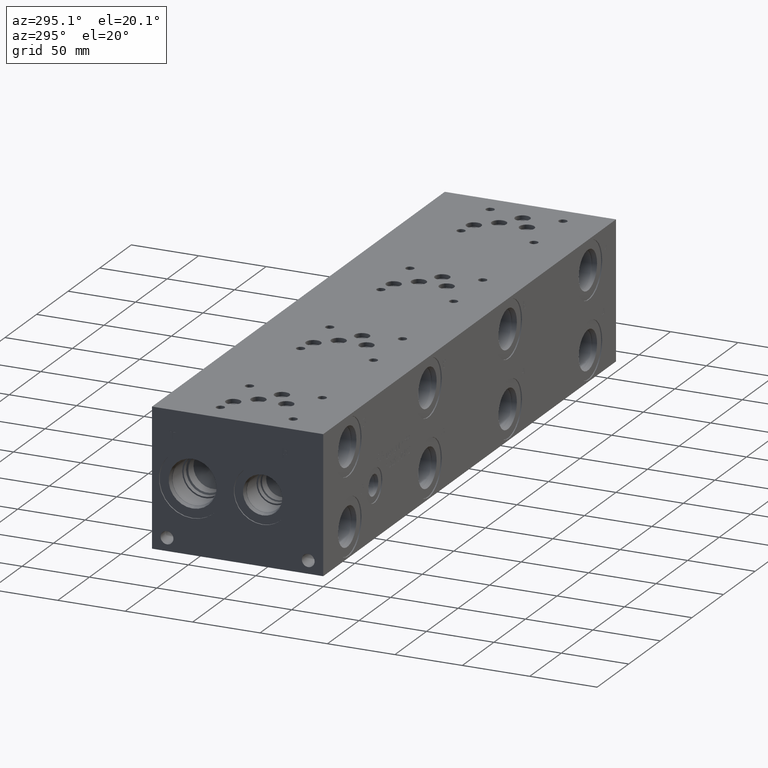
[diagram: clean part render]
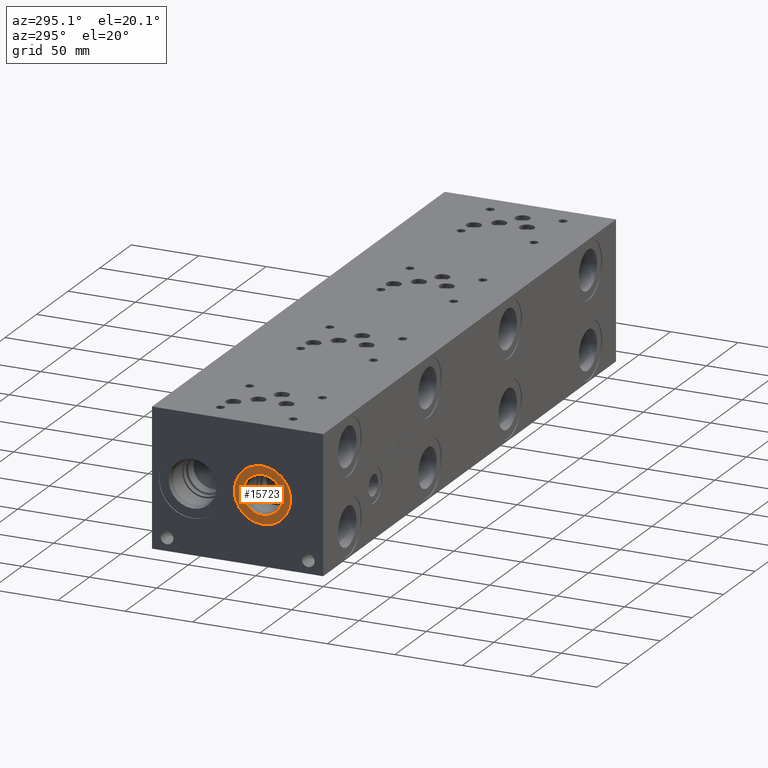
[diagram: same view with one face highlighted and labeled with its STEP entity id]
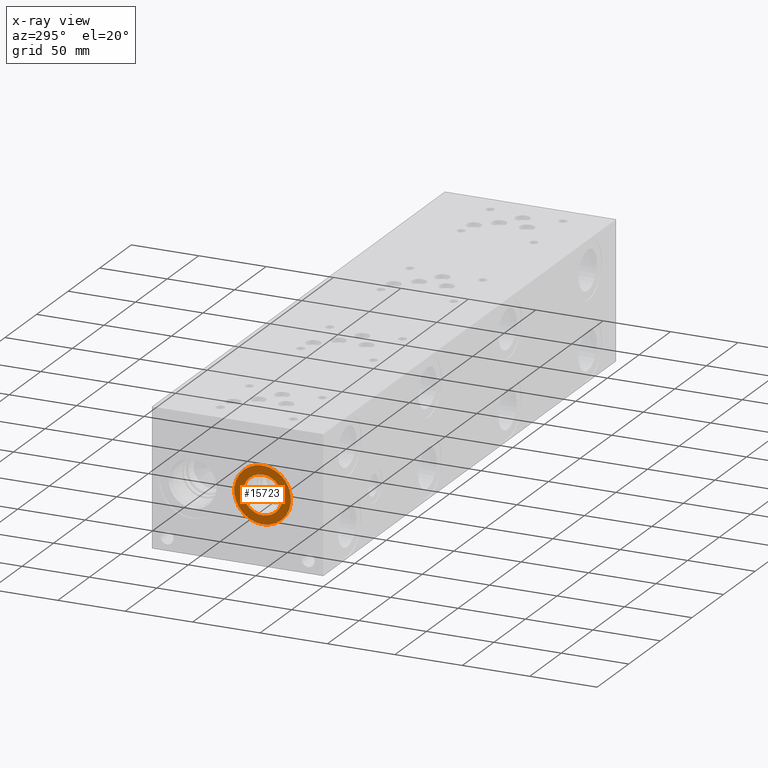
[diagram: x-ray of the same camera — body ghosted, the highlighted face saturated]
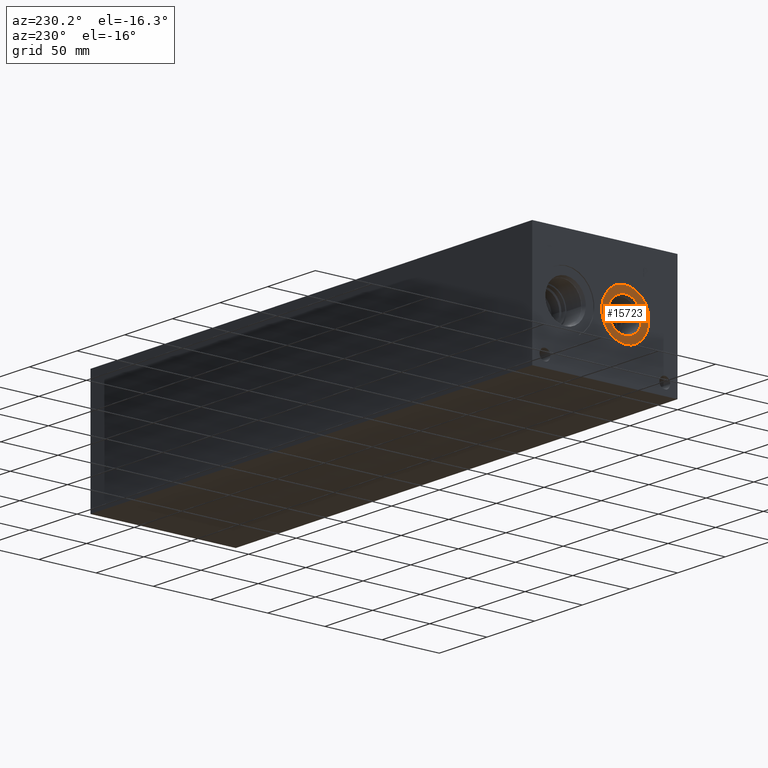
[diagram: same view with one face highlighted and labeled with its STEP entity id]
A machine part, auxiliary view. The second image highlights one B-rep face of the part: STEP entity #15723.
The next image is the same camera in x-ray: the body ghosted, the highlighted face saturated — about 0% of this face is hidden behind the body in this view.
A second angle (auxiliary view) of the same face is appended — the face is thin or edge-on in the first view.
In plain terms, the highlighted planar face has unit normal (1, 0, 0).
Its self-contained STEP definition (entity closure, byte-faithful):
#520=CIRCLE('',#16508,21.0185);
#521=CIRCLE('',#16509,21.0185);
#522=CIRCLE('',#16511,14.5923);
#523=CIRCLE('',#16512,14.5923);
#1294=FACE_BOUND('',#2894,.T.);
#1980=FACE_OUTER_BOUND('',#2893,.T.);
#2893=EDGE_LOOP('',(#13059,#13060));
#2894=EDGE_LOOP('',(#13061,#13062));
#7118=VERTEX_POINT('',#26430);
#7119=VERTEX_POINT('',#26432);
#7120=VERTEX_POINT('',#26436);
#7121=VERTEX_POINT('',#26437);
#9197=EDGE_CURVE('',#7118,#7119,#520,.T.);
#9198=EDGE_CURVE('',#7119,#7118,#521,.T.);
#9199=EDGE_CURVE('',#7120,#7121,#522,.T.);
#9200=EDGE_CURVE('',#7121,#7120,#523,.T.);
#13059=ORIENTED_EDGE('',*,*,#9198,.F.);
#13060=ORIENTED_EDGE('',*,*,#9197,.F.);
#13061=ORIENTED_EDGE('',*,*,#9199,.T.);
#13062=ORIENTED_EDGE('',*,*,#9200,.T.);
#14520=PLANE('',#16510);
#15723=ADVANCED_FACE('',(#1980,#1294),#14520,.F.);
#16508=AXIS2_PLACEMENT_3D('',#26433,#19408,#19409);
#16509=AXIS2_PLACEMENT_3D('',#26434,#19410,#19411);
#16510=AXIS2_PLACEMENT_3D('',#26435,#19412,#19413);
#16511=AXIS2_PLACEMENT_3D('',#26438,#19414,#19415);
#16512=AXIS2_PLACEMENT_3D('',#26439,#19416,#19417);
#19408=DIRECTION('center_axis',(1.,0.,0.));
#19409=DIRECTION('ref_axis',(0.,0.,-1.));
#19410=DIRECTION('center_axis',(1.,0.,0.));
#19411=DIRECTION('ref_axis',(0.,0.,-1.));
#19412=DIRECTION('center_axis',(1.,0.,0.));
#19413=DIRECTION('ref_axis',(0.,0.,-1.));
#19414=DIRECTION('center_axis',(1.,0.,0.));
#19415=DIRECTION('ref_axis',(0.,0.,-1.));
#19416=DIRECTION('center_axis',(1.,0.,0.));
#19417=DIRECTION('ref_axis',(0.,0.,-1.));
#26430=CARTESIAN_POINT('',(0.7874,45.2882,29.7815));
#26432=CARTESIAN_POINT('',(0.7874,45.2882,71.8185));
#26433=CARTESIAN_POINT('Origin',(0.7874,45.2882,50.8));
#26434=CARTESIAN_POINT('Origin',(0.7874,45.2882,50.8));
#26435=CARTESIAN_POINT('Origin',(0.7874,45.2882,65.3923));
#26436=CARTESIAN_POINT('',(0.7874,45.2882,65.3923));
#26437=CARTESIAN_POINT('',(0.787399999999999,45.2882,36.2077));
#26438=CARTESIAN_POINT('Origin',(0.7874,45.2882,50.8));
#26439=CARTESIAN_POINT('Origin',(0.7874,45.2882,50.8));